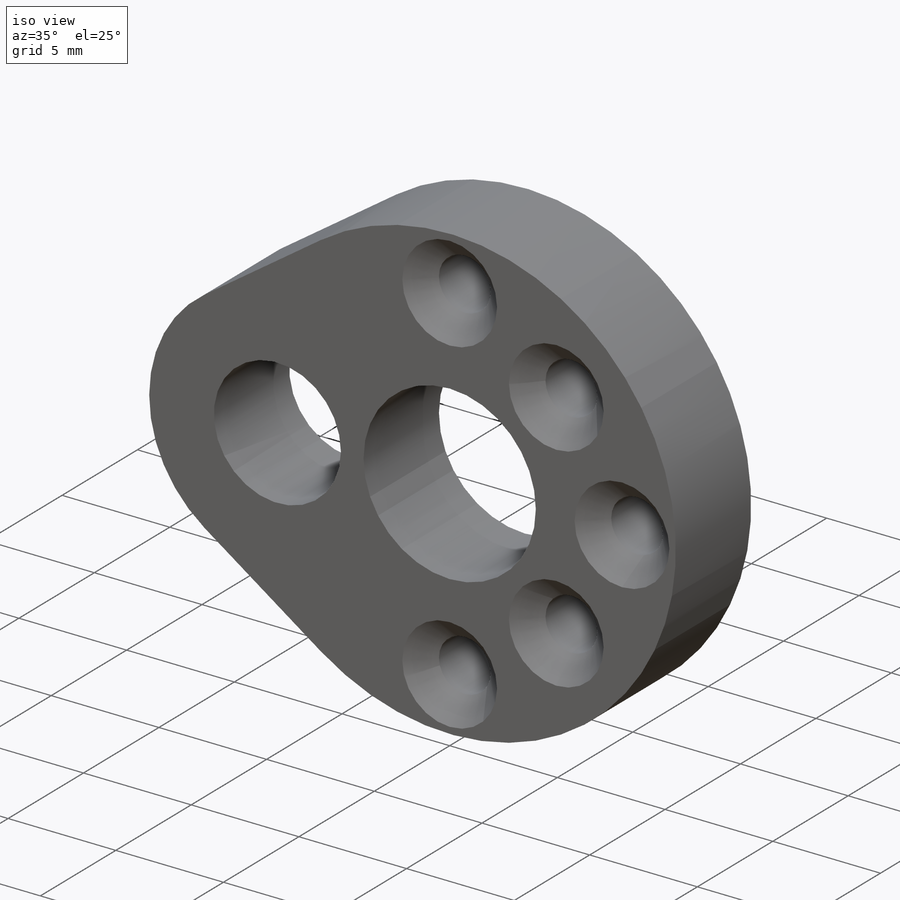
[diagram: iso view]
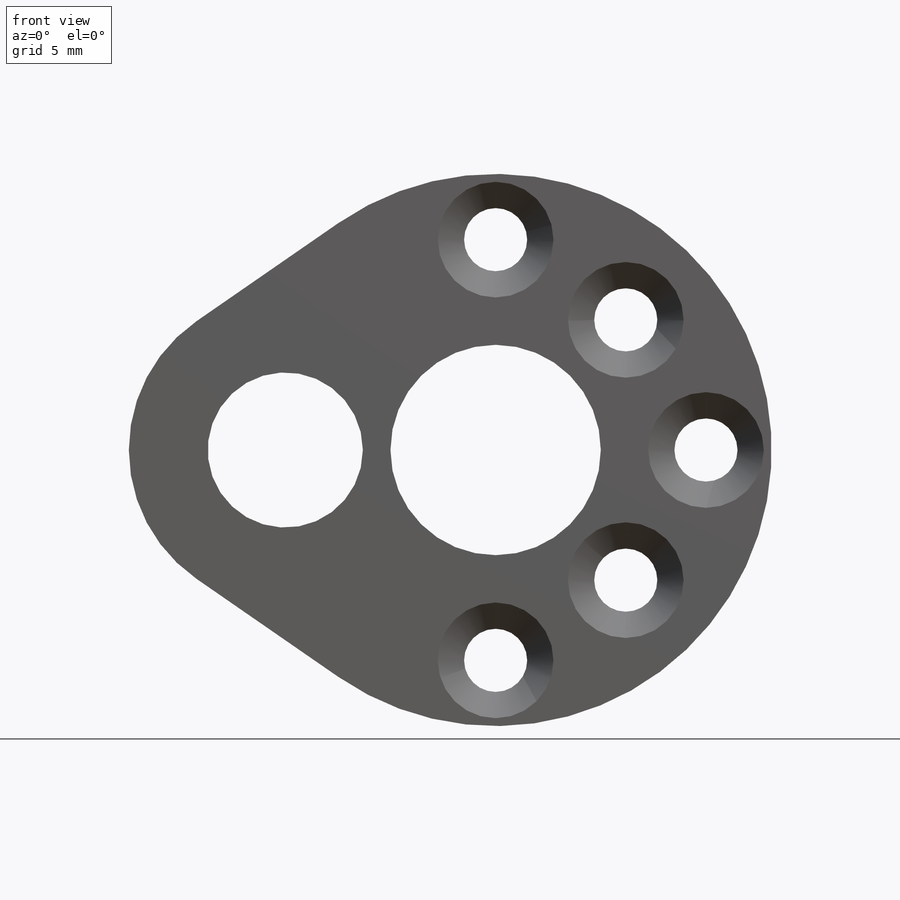
[diagram: front view]
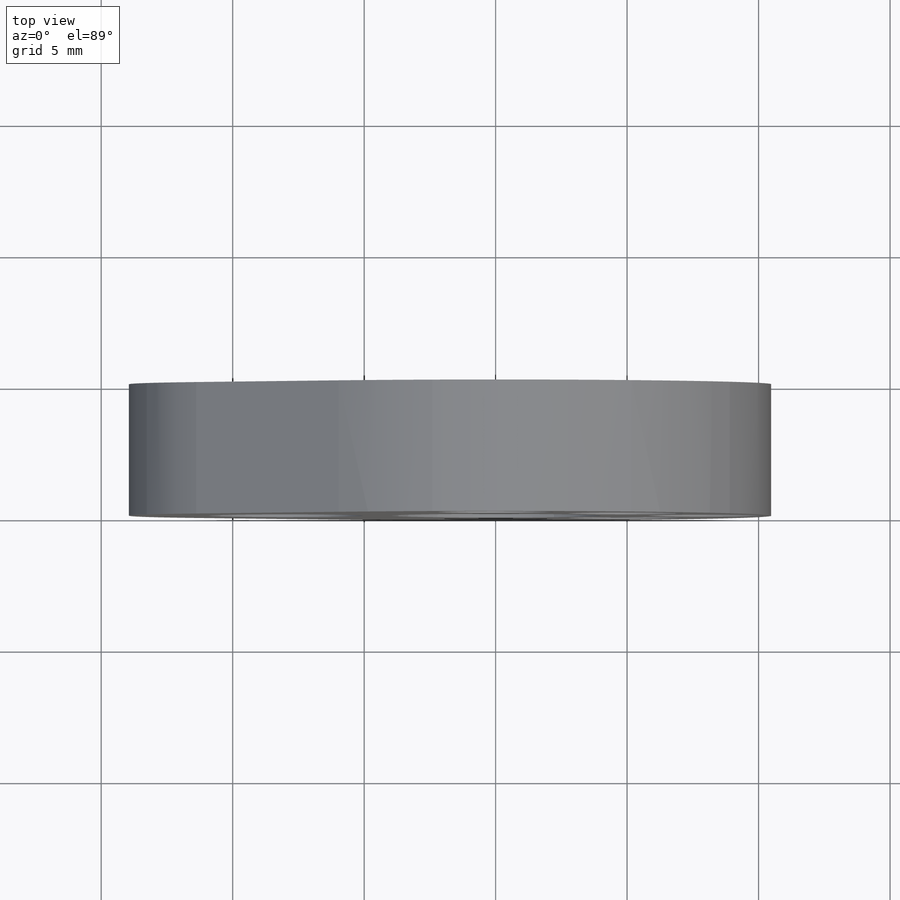
[diagram: top view]
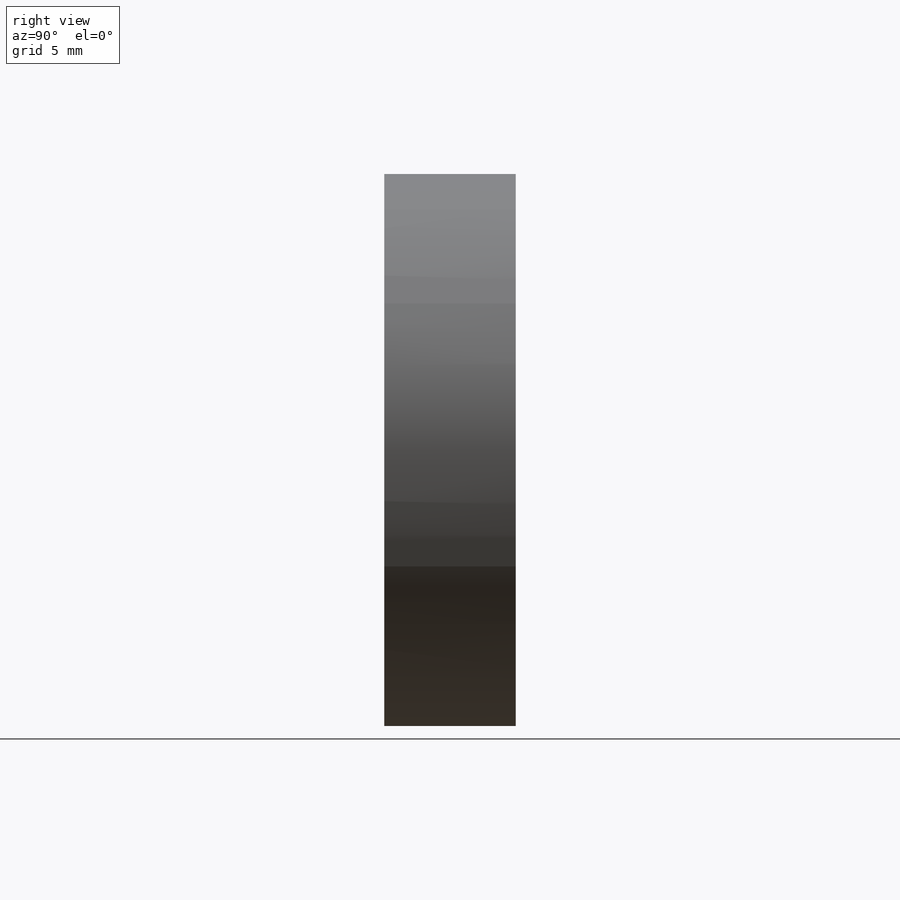
[diagram: right view]
SOLIDWORKS PART (.sldprt)
format: sldprt  version: not decoded by parser v0  size: 292,864 bytes
history: native  units: mm
features: sketch x8, extrude x4, cut_extrude x2, material x1, hole x1, mirror x1 (+12 scaffold rows collapsed)
feature tree (29):
  scaffold x12  (default folders/planes/origin — collapsed)
  material  "ABS"
  sketch  "Sketch1"  dims[D1=21.0mm D2=1.6mm D3=16.0mm D4=14.0mm]
  extrude  "Boss-Extrude1"  Depth=5mm
  sketch  "Sketch2"  dims[D2=5.9mm D1=3.0mm]
  extrude  "Boss-Extrude2"  [1 undecoded]
  hole  "CSK for M2 Countersunk Flat Head Screw1"  Diameter=2.4mm Depth=5mm
  sketch  "Sketch4"
  sketch  "Sketch3"  dims[hole-wizard template sketch: 55 standard entries collapsed; hole parameters kept: c17.Thru Hole Depth=5.0mm c17.Near C'Sink Dia.=4.4mm c17.D4=~3.666174mm c17.Near C'Sink Angle=90.0deg]
  sketch  "Sketch5"
  cut_extrude  "Cut-Extrude1"  Depth=5mm
  sketch  "Sketch6"  dims[D1=8.0mm]
  cut_extrude  "Cut-Extrude2"  Depth=5mm
  sketch  "Sketch7"
  extrude  "Boss-Extrude3"  [1 undecoded]
  mirror  "Mirror1"
  sketch  "Sketch8"
  extrude  "Boss-Extrude4"  [1 undecoded]
decode coverage: 8 of 16 modeling features carry decoded parameters
note: ~ marks probable driven/reference dimensions
note: 3 parameter values undecoded
summary: no parameter record found for 3 features
note: suppression state not decoded; provenance and decode notes live in map.json
